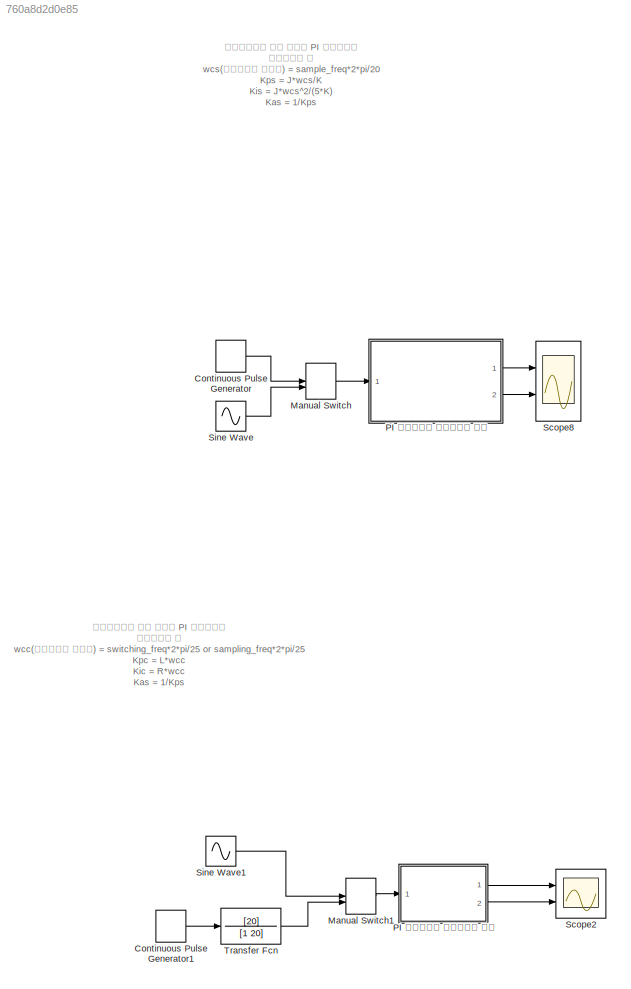
MODEL slx_760a8d2d0e85
KIND model
CONFIG AbsTol = auto
CONFIG EnableMultiTasking = off
CONFIG FixedStep = 0.001
CONFIG MaxStep = auto
CONFIG MinStep = auto
CONFIG RelTol = 1e-3
CONFIG SampleTimeConstraint = Unconstrained
CONFIG SolverName = ode4
CONFIG StartTime = 0.0
CONFIG StopTime = 10.0
BLOCK [DiscretePulseGenerator] Continuous Pulse Generator
  Amplitude = 100
  Period = 10
  Ports = [0, 1]
  PulseType = Time based
  PulseWidth = 50
BLOCK [DiscretePulseGenerator] Continuous Pulse Generator1
  Amplitude = 0.05
  Period = 10
  Ports = [0, 1]
  PulseType = Time based
  PulseWidth = 50
BLOCK [ManualSwitch] Manual Switch
BLOCK [ManualSwitch] Manual Switch1
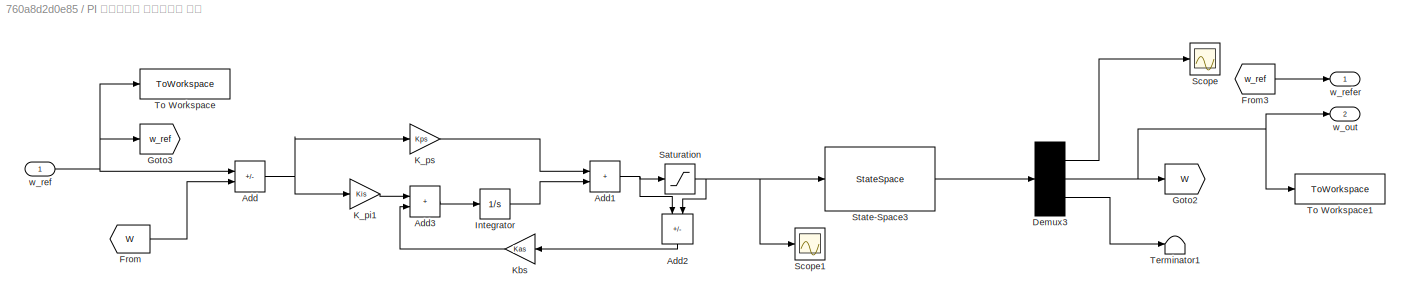
BLOCK [SubSystem] PI 속도제어기 시뮬레이션 모델
  Ports = [1, 2]
  RequestExecContextInheritance = off
BLOCK [Sum] PI 속도제어기 시뮬레이션 모델/Add
  IconShape = rectangular
  Inputs = +-
  Ports = [2, 1]
BLOCK [Sum] PI 속도제어기 시뮬레이션 모델/Add1
  IconShape = rectangular
  Ports = [2, 1]
BLOCK [Sum] PI 속도제어기 시뮬레이션 모델/Add2
  IconShape = rectangular
  Inputs = -+
  NameLocation = left
  Ports = [2, 1]
BLOCK [Sum] PI 속도제어기 시뮬레이션 모델/Add3
  IconShape = rectangular
  Ports = [2, 1]
BLOCK [Demux] PI 속도제어기 시뮬레이션 모델/Demux3
  Outputs = 3
  Ports = [1, 3]
BLOCK [From] PI 속도제어기 시뮬레이션 모델/From
  GotoTag = W
BLOCK [From] PI 속도제어기 시뮬레이션 모델/From3
  GotoTag = w_ref
BLOCK [Goto] PI 속도제어기 시뮬레이션 모델/Goto2
  GotoTag = W
BLOCK [Goto] PI 속도제어기 시뮬레이션 모델/Goto3
  GotoTag = w_ref
BLOCK [Integrator] PI 속도제어기 시뮬레이션 모델/Integrator
  Ports = [1, 1]
BLOCK [Gain] PI 속도제어기 시뮬레이션 모델/K_pi1
  Gain = Kis
BLOCK [Gain] PI 속도제어기 시뮬레이션 모델/K_ps
  Gain = Kps
BLOCK [Gain] PI 속도제어기 시뮬레이션 모델/Kbs
  Gain = Kas
  NameLocation = top
BLOCK [Saturate] PI 속도제어기 시뮬레이션 모델/Saturation
  LowerLimit = -12
  UpperLimit = 12
BLOCK [Scope] PI 속도제어기 시뮬레이션 모델/Scope
  Floating = off
  NumInputPorts = 1
  Ports = [1]
  ScopeSpecificationString = Simulink.scopes.TimeScopeBlockCfg('CurrentConfiguration', extmgr.ConfigurationSet(extmgr.Configuration('Core','General UI',true),extmgr.Configuration('Core','Source UI',true),extmgr.Configuration('Sources','WiredSimulink',true),extmgr.Configuration('Visuals','Time Domain',true,'SerializedDisplays',{struct('MinYLimReal','-0.29946','MaxYLimReal','0.4101','YLabelReal','','MinYLimMag','0.00000','MaxYL...<+1353ch>
BLOCK [Scope] PI 속도제어기 시뮬레이션 모델/Scope1
  Floating = off
  NumInputPorts = 1
  Ports = [1]
  ScopeSpecificationString = Simulink.scopes.TimeScopeBlockCfg('CurrentConfiguration', extmgr.ConfigurationSet(extmgr.Configuration('Core','General UI',true),extmgr.Configuration('Core','Source UI',true),extmgr.Configuration('Sources','WiredSimulink',true,'DataLoggingVariableName','ScopeData2'),extmgr.Configuration('Visuals','Time Domain',true,'SerializedDisplays',{struct('MinYLimReal','-15.00000','MaxYLimReal','15.00000','YL...<+1408ch>
BLOCK [StateSpace] PI 속도제어기 시뮬레이션 모델/State-Space3
  A = A
  B = B
  C = C
  D = D
  InitialCondition = 0
  Ports = [1, 1]
BLOCK [Terminator] PI 속도제어기 시뮬레이션 모델/Terminator1
BLOCK [ToWorkspace] PI 속도제어기 시뮬레이션 모델/To Workspace
  FixptAsFi = on
  MaxDataPoints = inf
  Ports = [1]
  SampleTime = -1
  VariableName = w_sim_ref
BLOCK [ToWorkspace] PI 속도제어기 시뮬레이션 모델/To Workspace1
  FixptAsFi = on
  MaxDataPoints = inf
  Ports = [1]
  SampleTime = -1
  VariableName = w_sim_out
BLOCK [Outport] PI 속도제어기 시뮬레이션 모델/w_out
  Port = 2
BLOCK [Inport] PI 속도제어기 시뮬레이션 모델/w_ref
BLOCK [Outport] PI 속도제어기 시뮬레이션 모델/w_refer
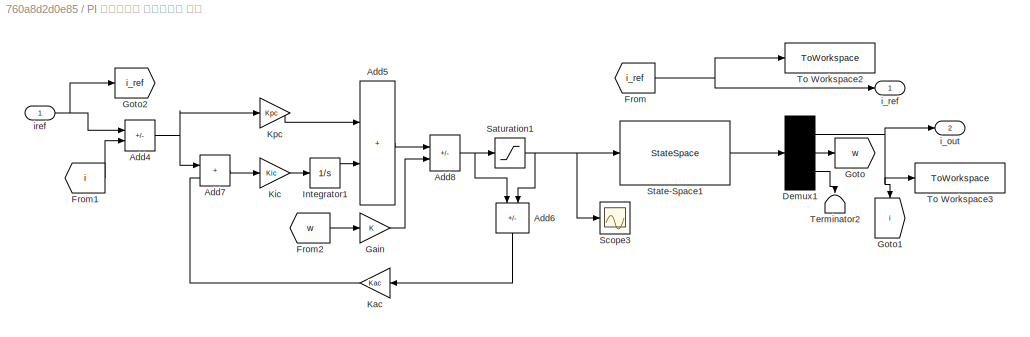
BLOCK [SubSystem] PI 전류제어기 시뮬레이션 모델
  Ports = [1, 2]
  RequestExecContextInheritance = off
BLOCK [Sum] PI 전류제어기 시뮬레이션 모델/Add4
  IconShape = rectangular
  Inputs = +-
  Ports = [2, 1]
BLOCK [Sum] PI 전류제어기 시뮬레이션 모델/Add5
  IconShape = rectangular
  Ports = [2, 1]
BLOCK [Sum] PI 전류제어기 시뮬레이션 모델/Add6
  IconShape = rectangular
  Inputs = -+
  NameLocation = left
  Ports = [2, 1]
BLOCK [Sum] PI 전류제어기 시뮬레이션 모델/Add7
  IconShape = rectangular
  Ports = [2, 1]
BLOCK [Sum] PI 전류제어기 시뮬레이션 모델/Add8
  IconShape = rectangular
  Inputs = +-
  Ports = [2, 1]
BLOCK [Demux] PI 전류제어기 시뮬레이션 모델/Demux1
  Outputs = 3
  Ports = [1, 3]
BLOCK [From] PI 전류제어기 시뮬레이션 모델/From
  GotoTag = i_ref
BLOCK [From] PI 전류제어기 시뮬레이션 모델/From1
  GotoTag = i
BLOCK [From] PI 전류제어기 시뮬레이션 모델/From2
  GotoTag = w
BLOCK [Gain] PI 전류제어기 시뮬레이션 모델/Gain
  Gain = K
BLOCK [Goto] PI 전류제어기 시뮬레이션 모델/Goto
  GotoTag = w
BLOCK [Goto] PI 전류제어기 시뮬레이션 모델/Goto1
  GotoTag = i
  NameLocation = left
BLOCK [Goto] PI 전류제어기 시뮬레이션 모델/Goto2
  GotoTag = i_ref
BLOCK [Integrator] PI 전류제어기 시뮬레이션 모델/Integrator1
  Ports = [1, 1]
BLOCK [Gain] PI 전류제어기 시뮬레이션 모델/Kac
  Gain = Kac
  NameLocation = top
BLOCK [Gain] PI 전류제어기 시뮬레이션 모델/Kic
  Gain = Kic
BLOCK [Gain] PI 전류제어기 시뮬레이션 모델/Kpc
  Gain = Kpc
BLOCK [Saturate] PI 전류제어기 시뮬레이션 모델/Saturation1
  LowerLimit = -12
  UpperLimit = 12
BLOCK [Scope] PI 전류제어기 시뮬레이션 모델/Scope3
  Floating = off
  NumInputPorts = 1
  Ports = [1]
  ScopeSpecificationString = Simulink.scopes.TimeScopeBlockCfg('CurrentConfiguration', extmgr.ConfigurationSet(extmgr.Configuration('Core','General UI',true),extmgr.Configuration('Core','Source UI',true),extmgr.Configuration('Sources','WiredSimulink',true,'DataLoggingVariableName','ScopeData4'),extmgr.Configuration('Visuals','Time Domain',true,'SerializedDisplays',{struct('MinYLimReal','-0.19759','MaxYLimReal','1.78197','YLab...<+1370ch>
BLOCK [StateSpace] PI 전류제어기 시뮬레이션 모델/State-Space1
  A = A
  B = B
  C = C
  D = D
  InitialCondition = 0
  Ports = [1, 1]
BLOCK [Terminator] PI 전류제어기 시뮬레이션 모델/Terminator2
  NameLocation = left
BLOCK [ToWorkspace] PI 전류제어기 시뮬레이션 모델/To Workspace2
  FixptAsFi = on
  MaxDataPoints = inf
  Ports = [1]
  SampleTime = -1
  VariableName = i_sim_ref
BLOCK [ToWorkspace] PI 전류제어기 시뮬레이션 모델/To Workspace3
  FixptAsFi = on
  MaxDataPoints = inf
  Ports = [1]
  SampleTime = -1
  VariableName = i_sim_out
BLOCK [Outport] PI 전류제어기 시뮬레이션 모델/i_out
  Port = 2
BLOCK [Outport] PI 전류제어기 시뮬레이션 모델/i_ref
BLOCK [Inport] PI 전류제어기 시뮬레이션 모델/iref
BLOCK [Scope] Scope2
  Floating = off
  NumInputPorts = 2
  Ports = [2]
  ScopeSpecificationString = Simulink.scopes.TimeScopeBlockCfg('CurrentConfiguration', extmgr.ConfigurationSet(extmgr.Configuration('Core','General UI',true),extmgr.Configuration('Core','Source UI',true),extmgr.Configuration('Sources','WiredSimulink',true,'DataLoggingVariableName','ScopeData3'),extmgr.Configuration('Visuals','Time Domain',true,'SerializedDisplays',{struct('MinYLimReal','-0.0625','MaxYLimReal','0.0625','YLabel...<+1423ch>
BLOCK [Scope] Scope8
  Floating = off
  NumInputPorts = 2
  Ports = [2]
  ScopeSpecificationString = Simulink.scopes.TimeScopeBlockCfg('CurrentConfiguration', extmgr.ConfigurationSet(extmgr.Configuration('Core','General UI',true),extmgr.Configuration('Core','Source UI',true),extmgr.Configuration('Sources','WiredSimulink',true,'DataLoggingVariableName','ScopeData1'),extmgr.Configuration('Visuals','Time Domain',true,'SerializedDisplays',{struct('MinYLimReal','-250.00000','MaxYLimReal','250.00000','...<+1462ch>
BLOCK [Sin] Sine Wave
  Amplitude = 200
  Frequency = 5
  Ports = [0, 1]
  SampleTime = 0
BLOCK [Sin] Sine Wave1
  Amplitude = 0.05
  Frequency = 5
  Ports = [0, 1]
  SampleTime = 0
BLOCK [TransferFcn] Transfer Fcn
  Denominator = [1 20]
  Numerator = [20]
ANNOTATION (root): 시뮬레이션을 통한 모터의 PI 속도제어기 계수구하는 법 wcs(속도제어기 대역폭) = sample_freq*2*pi/20 Kps = J*wcs/K Kis = J*wcs^2/(5*K) Kas = 1/Kps
ANNOTATION (root): 시뮬레이션을 통한 모터의 PI 전류제어기 계수구하는 법 wcc(전류제어기 대역폭) = switching_freq*2*pi/25 or sampling_freq*2*pi/25 Kpc = L*wcc Kic = R*wcc Kas = 1/Kps
LINE Continuous Pulse Generator1:1 -> Transfer Fcn:1
LINE Continuous Pulse Generator:1 -> Manual Switch:1
LINE Manual Switch1:1 -> PI 전류제어기 시뮬레이션 모델:1
LINE Manual Switch:1 -> PI 속도제어기 시뮬레이션 모델:1
NET PI 속도제어기 시뮬레이션 모델/Add1:1 -> PI 속도제어기 시뮬레이션 모델/Add2:1, PI 속도제어기 시뮬레이션 모델/Saturation:1
LINE PI 속도제어기 시뮬레이션 모델/Add2:1 -> PI 속도제어기 시뮬레이션 모델/Kbs:1
LINE PI 속도제어기 시뮬레이션 모델/Add3:1 -> PI 속도제어기 시뮬레이션 모델/Integrator:1
NET PI 속도제어기 시뮬레이션 모델/Add:1 -> PI 속도제어기 시뮬레이션 모델/K_pi1:1, PI 속도제어기 시뮬레이션 모델/K_ps:1
LINE PI 속도제어기 시뮬레이션 모델/Demux3:1 -> PI 속도제어기 시뮬레이션 모델/Scope:1
NET PI 속도제어기 시뮬레이션 모델/Demux3:2 -> PI 속도제어기 시뮬레이션 모델/Goto2:1, PI 속도제어기 시뮬레이션 모델/To Workspace1:1, PI 속도제어기 시뮬레이션 모델/w_out:1
LINE PI 속도제어기 시뮬레이션 모델/Demux3:3 -> PI 속도제어기 시뮬레이션 모델/Terminator1:1
LINE PI 속도제어기 시뮬레이션 모델/From3:1 -> PI 속도제어기 시뮬레이션 모델/w_refer:1
LINE PI 속도제어기 시뮬레이션 모델/From:1 -> PI 속도제어기 시뮬레이션 모델/Add:2
LINE PI 속도제어기 시뮬레이션 모델/Integrator:1 -> PI 속도제어기 시뮬레이션 모델/Add1:2
LINE PI 속도제어기 시뮬레이션 모델/K_pi1:1 -> PI 속도제어기 시뮬레이션 모델/Add3:1
LINE PI 속도제어기 시뮬레이션 모델/K_ps:1 -> PI 속도제어기 시뮬레이션 모델/Add1:1
LINE PI 속도제어기 시뮬레이션 모델/Kbs:1 -> PI 속도제어기 시뮬레이션 모델/Add3:2
NET PI 속도제어기 시뮬레이션 모델/Saturation:1 -> PI 속도제어기 시뮬레이션 모델/Add2:2, PI 속도제어기 시뮬레이션 모델/Scope1:1, PI 속도제어기 시뮬레이션 모델/State-Space3:1
LINE PI 속도제어기 시뮬레이션 모델/State-Space3:1 -> PI 속도제어기 시뮬레이션 모델/Demux3:1
NET PI 속도제어기 시뮬레이션 모델/w_ref:1 -> PI 속도제어기 시뮬레이션 모델/Add:1, PI 속도제어기 시뮬레이션 모델/Goto3:1, PI 속도제어기 시뮬레이션 모델/To Workspace:1
LINE PI 속도제어기 시뮬레이션 모델:1 -> Scope8:1
LINE PI 속도제어기 시뮬레이션 모델:2 -> Scope8:2
NET PI 전류제어기 시뮬레이션 모델/Add4:1 -> PI 전류제어기 시뮬레이션 모델/Add7:1, PI 전류제어기 시뮬레이션 모델/Kpc:1
LINE PI 전류제어기 시뮬레이션 모델/Add5:1 -> PI 전류제어기 시뮬레이션 모델/Add8:1
LINE PI 전류제어기 시뮬레이션 모델/Add6:1 -> PI 전류제어기 시뮬레이션 모델/Kac:1
LINE PI 전류제어기 시뮬레이션 모델/Add7:1 -> PI 전류제어기 시뮬레이션 모델/Kic:1
NET PI 전류제어기 시뮬레이션 모델/Add8:1 -> PI 전류제어기 시뮬레이션 모델/Add6:1, PI 전류제어기 시뮬레이션 모델/Saturation1:1
NET PI 전류제어기 시뮬레이션 모델/Demux1:1 -> PI 전류제어기 시뮬레이션 모델/Goto1:1, PI 전류제어기 시뮬레이션 모델/To Workspace3:1, PI 전류제어기 시뮬레이션 모델/i_out:1
LINE PI 전류제어기 시뮬레이션 모델/Demux1:2 -> PI 전류제어기 시뮬레이션 모델/Goto:1
LINE PI 전류제어기 시뮬레이션 모델/Demux1:3 -> PI 전류제어기 시뮬레이션 모델/Terminator2:1
LINE PI 전류제어기 시뮬레이션 모델/From1:1 -> PI 전류제어기 시뮬레이션 모델/Add4:2
LINE PI 전류제어기 시뮬레이션 모델/From2:1 -> PI 전류제어기 시뮬레이션 모델/Gain:1
NET PI 전류제어기 시뮬레이션 모델/From:1 -> PI 전류제어기 시뮬레이션 모델/To Workspace2:1, PI 전류제어기 시뮬레이션 모델/i_ref:1
LINE PI 전류제어기 시뮬레이션 모델/Gain:1 -> PI 전류제어기 시뮬레이션 모델/Add8:2
LINE PI 전류제어기 시뮬레이션 모델/Integrator1:1 -> PI 전류제어기 시뮬레이션 모델/Add5:2
LINE PI 전류제어기 시뮬레이션 모델/Kac:1 -> PI 전류제어기 시뮬레이션 모델/Add7:2
LINE PI 전류제어기 시뮬레이션 모델/Kic:1 -> PI 전류제어기 시뮬레이션 모델/Integrator1:1
LINE PI 전류제어기 시뮬레이션 모델/Kpc:1 -> PI 전류제어기 시뮬레이션 모델/Add5:1
NET PI 전류제어기 시뮬레이션 모델/Saturation1:1 -> PI 전류제어기 시뮬레이션 모델/Add6:2, PI 전류제어기 시뮬레이션 모델/Scope3:1, PI 전류제어기 시뮬레이션 모델/State-Space1:1
LINE PI 전류제어기 시뮬레이션 모델/State-Space1:1 -> PI 전류제어기 시뮬레이션 모델/Demux1:1
NET PI 전류제어기 시뮬레이션 모델/iref:1 -> PI 전류제어기 시뮬레이션 모델/Add4:1, PI 전류제어기 시뮬레이션 모델/Goto2:1
LINE PI 전류제어기 시뮬레이션 모델:1 -> Scope2:1
LINE PI 전류제어기 시뮬레이션 모델:2 -> Scope2:2
LINE Sine Wave1:1 -> Manual Switch1:1
LINE Sine Wave:1 -> Manual Switch:2
LINE Transfer Fcn:1 -> Manual Switch1:2
note: NET lines group one-source signal fan-out (src -> all destinations, sorted); 1:1 wires keep LINE
